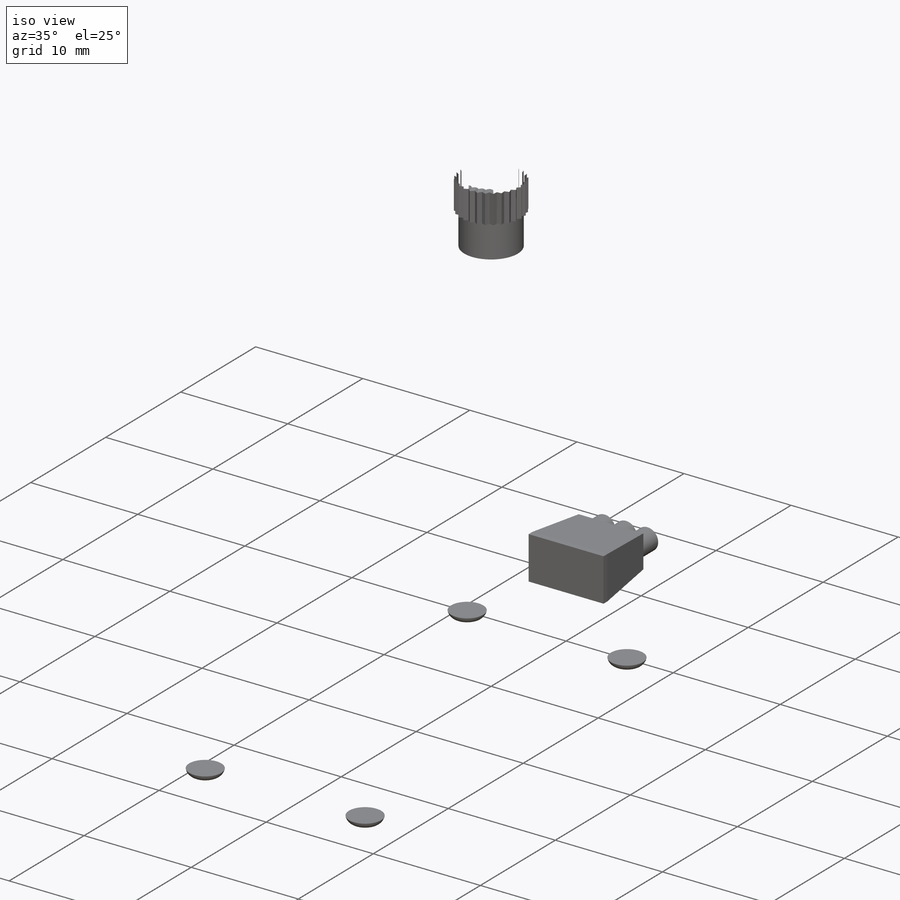
[diagram: iso view]
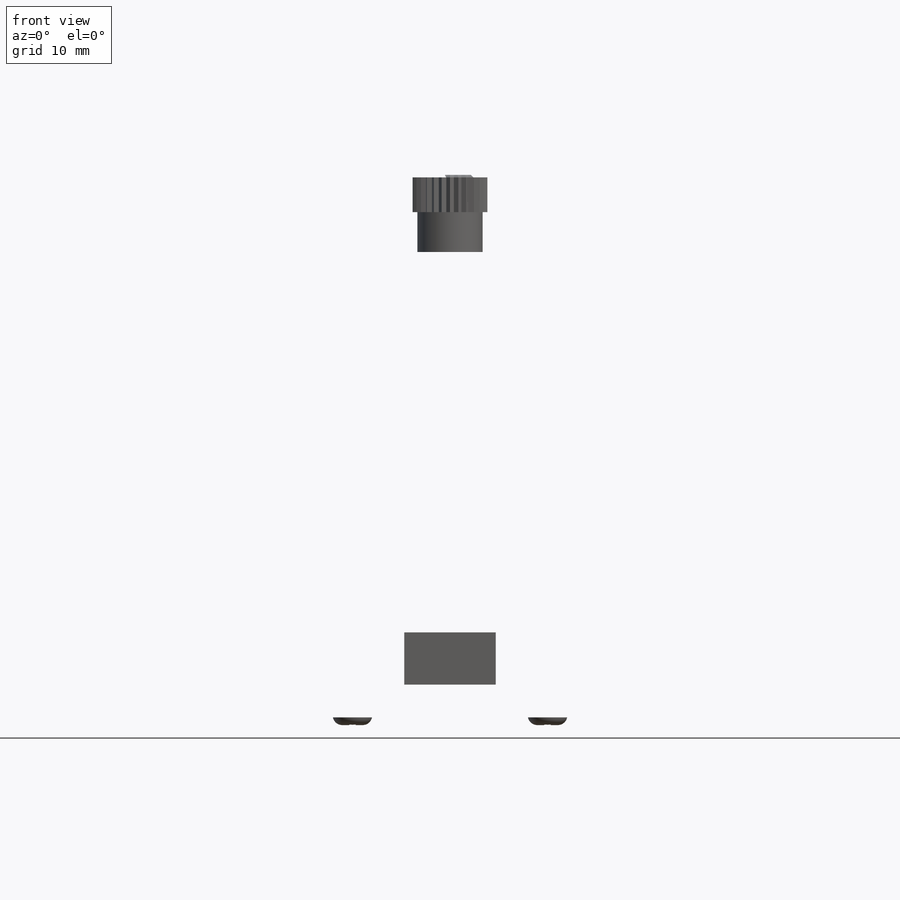
[diagram: front view]
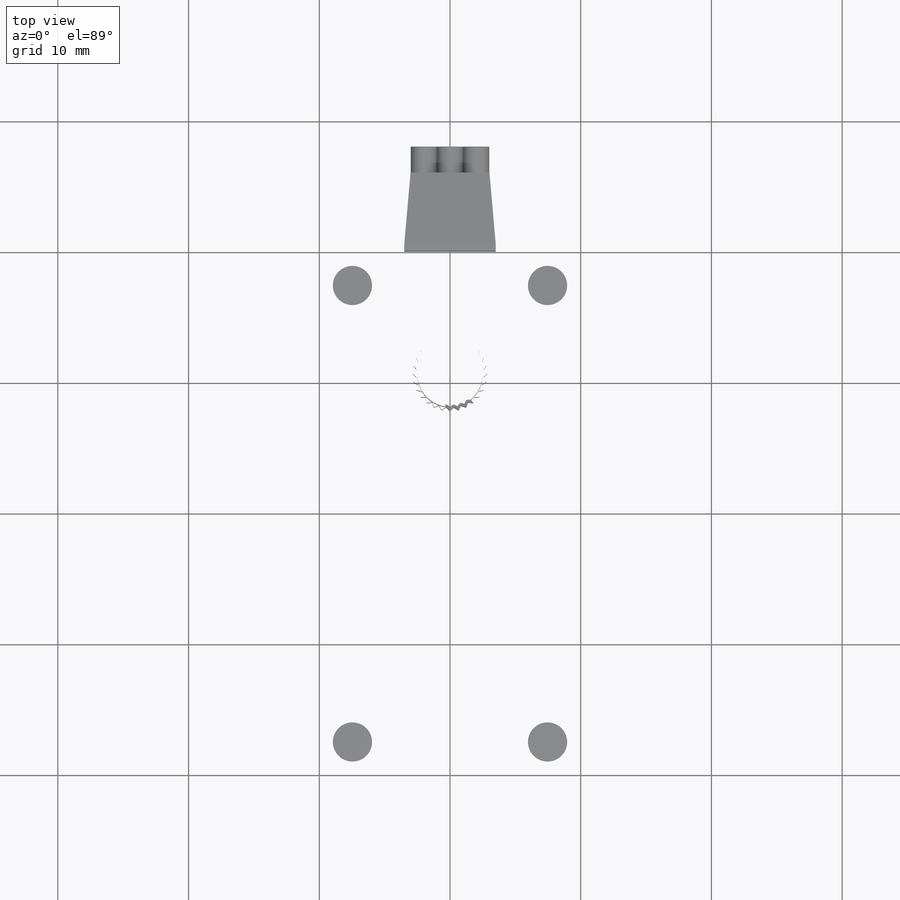
[diagram: top view]
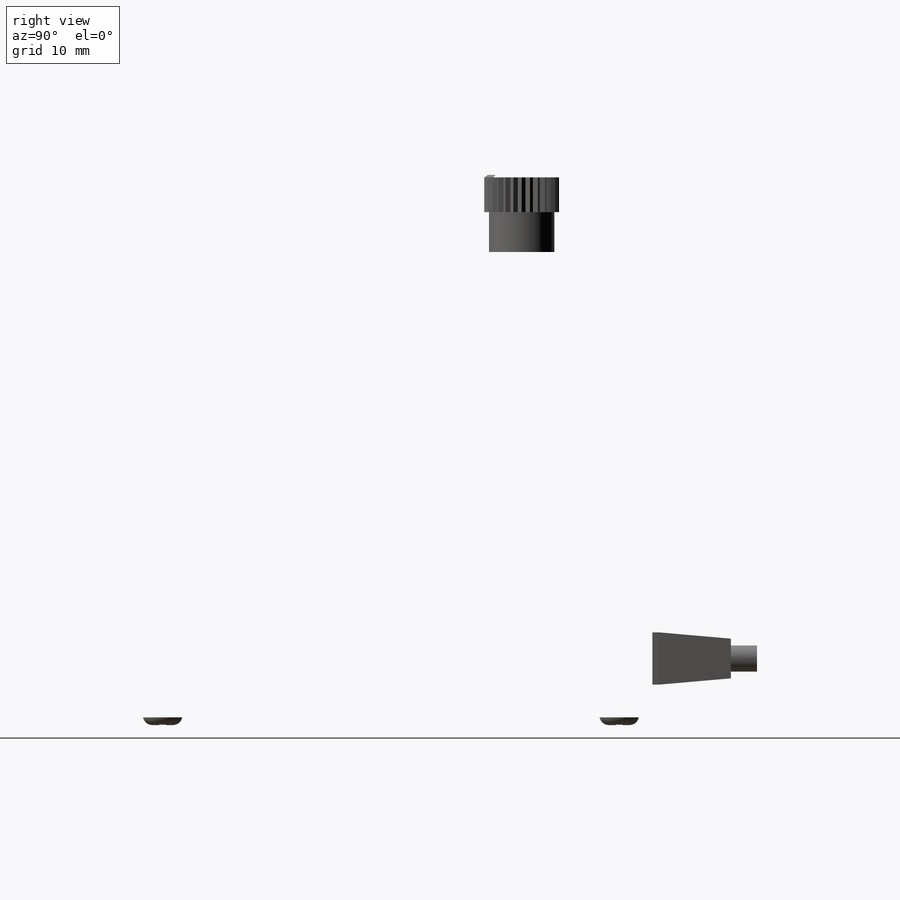
[diagram: right view]
SOLIDWORKS PART (.sldprt)
format: sldprt  version: not decoded by parser v0  size: 1,954,816 bytes
history: native  units: mm
features: sketch x21, extrude x16, plane x5, fillet x5, cut_extrude x5, material x1 (+10 scaffold rows collapsed)
feature tree (63):
  scaffold x10  (default folders/planes/origin — collapsed)
  material  "Material <not specified>"
  plane  "Frontale"
  plane  "Superiore"
  plane  "Destro"
  sketch  "Sketch1"  dims[D1=20.0mm D2=40.0mm D3=20.0mm D4=10.0mm]
  extrude  "Boss-Extrude1"  Depth=30mm
  fillet  "Fillet1"  Radius=1mm
  sketch  "Sketch2"  dims[D1=0.0mm]
  extrude  "Boss-Extrude2"  Depth=3.5mm
  sketch  "Sketch3"  dims[D3=2.0mm D1=3.5mm D2=3.5mm]
  cut_extrude  "Cut-Extrude1"  Depth=1mm
  sketch  "Sketch4"  dims[D1=3.0mm D2=1.9mm D3=1.9mm]
  extrude  "Boss-Extrude3"  Depth=0.4mm
  fillet  "Fillet2"  Radius=0.75mm
  fillet  "Fillet3"  Radius=0.75mm
  fillet  "Fillet4"  Radius=0.75mm
  fillet  "Fillet5"  Radius=0.75mm
  sketch  "Sketch5"  dims[D1=0.5mm D2=0.5mm D3=0.25mm D4=0.25mm D5=2.0mm D6=2.0mm D7=1.0mm D8=1.0mm]
  cut_extrude  "Cut-Extrude2"  Depth=0.5mm
  sketch  "Sketch6"  dims[D1=0.5mm]
  extrude  "Boss-Extrude4"  Depth=0.5mm
  sketch  "Sketch7"  dims[c1.D1=9.8mm c1.D3=1.3mm c1.D4=6.0mm c2.D3=1.6mm c2.D6=9.5mm c2.D1=20.0mm c2.D2=3.7mm c2.D5=4.0mm c3.D3=10.0mm c3.D6=10.0mm]
  extrude  "Boss-Extrude5"  Depth=2.9mm
  sketch  "Sketch8"  dims[D1=13.5mm]
  extrude  "Boss-Extrude6"  Depth=2mm
  sketch  "Sketch9"  dims[D1=10.0mm]
  extrude  "Boss-Extrude7"  Depth=0.5mm
  sketch  "Sketch10"  dims[D1=5.0mm]
  cut_extrude  "Cut-Extrude3"  Depth=2.8mm
  plane  "Plane1"  Offset=26.5mm
  sketch  "Sketch12"  dims[c1.D2=2.794mm c1.D3=~1.528678mm c1.D4=4.0mm c1.D8=1.5mm c1.D1=26.5mm c1.D5=5.0mm c1.D6=24.0mm c1.D7=1.0mm c2.D8=~0.767949mm]
  extrude  "Boss-Extrude8"  Depth=2.5mm
  sketch  "Sketch14"  dims[D1=2.0mm D2=5.0mm]
  extrude  "Boss-Extrude9"  Depth=0.5mm
  plane  "Plane2"  Offset=2mm
  sketch  "Sketch27"  dims[D1=0.6mm D2=0.8mm D4=1.0mm D3=8.0]
  cut_extrude  "Cut-Extrude5"  [1 undecoded]
  sketch  "Sketch26"  dims[D3=~1.382651mm D4=1.143mm D9=3.0mm D11=1.63mm D12=~1.627864mm D1=~0.97059mm D2=~0.641503mm D6=~9.472378mm D7=~12.830053mm D8=12.5mm D5=0.0mm D10=1.0mm]
  extrude  "Boss-Extrude18"  Depth=0.1mm
  sketch  "Sketch15"  dims[D1=7.0mm D2=4.0mm D3=0.0mm]
  extrude  "Boss-Extrude10"  Depth=0.5mm
  sketch  "Sketch16"  dims[D1=0.0mm]
  extrude  "Boss-Extrude11"  Depth=5.5mm
  sketch  "Sketch17"  dims[D1=2.0mm]
  extrude  "Boss-Extrude13"  Depth=2mm
  sketch  "Sketch21"  dims[D1=5.0mm D2=4.75mm]
  extrude  "Boss-Extrude15"  Depth=0.25mm
  sketch  "Sketch23"  dims[D1=5.81mm]
  extrude  "Boss-Extrude16"  Depth=2.9mm
  sketch  "Sketch24"  dims[D1=0.0mm]
  extrude  "Boss-Extrude17"  Depth=0.2mm
  sketch  "Sketch25"  dims[D1=2.5mm]
  cut_extrude  "Cut-Extrude4"  Depth=5mm
decode coverage: 46 of 47 modeling features carry decoded parameters
note: ~ marks probable driven/reference dimensions
note: 1 parameter value undecoded
note: suppression state not decoded; provenance and decode notes live in map.json
